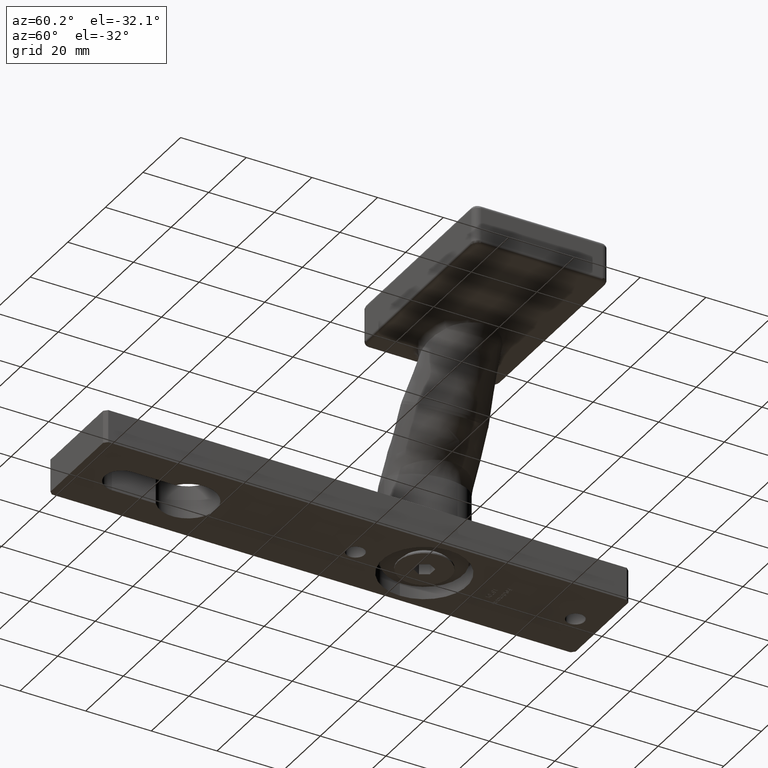
[diagram: clean part render]
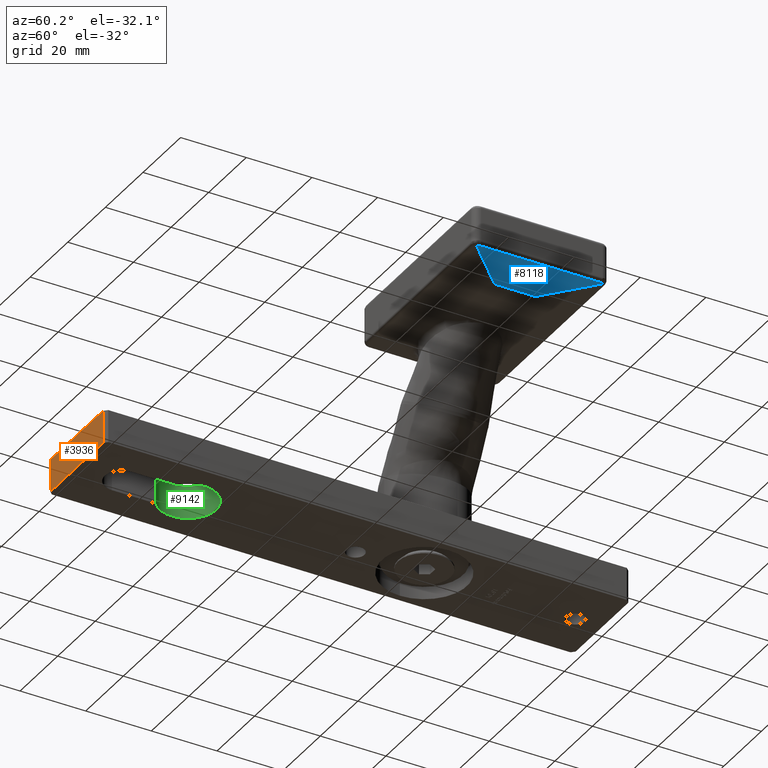
[diagram: same view with three faces highlighted in distinct colors, each labeled with its STEP entity id]
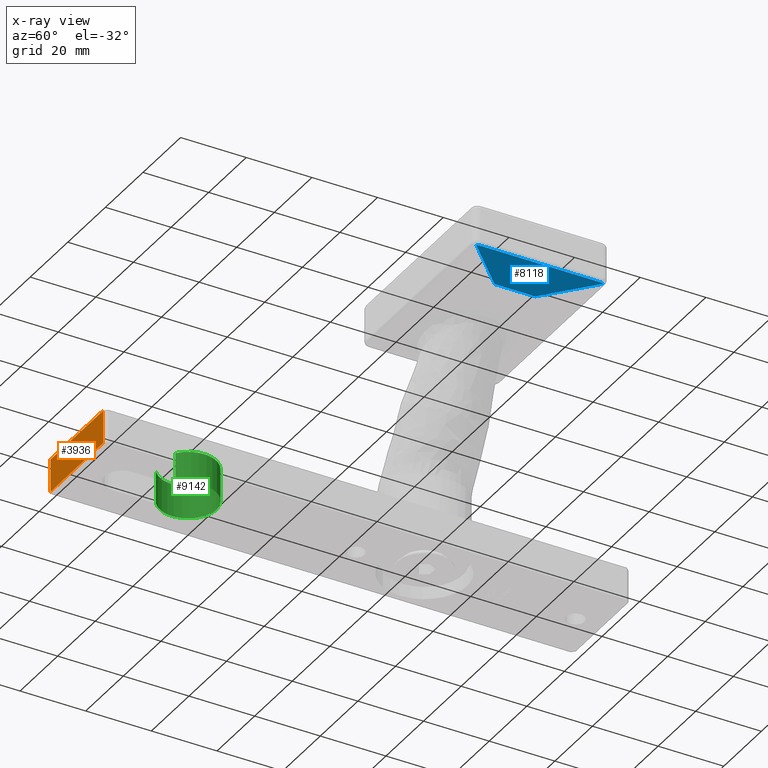
[diagram: x-ray of the same camera — body ghosted, the three highlighted faces saturated]
A machine part, auxiliary view with three faces highlighted in distinct colors.
The next image is the same camera in x-ray (body ghosted, the three faces saturated) — at least one of them is partly hidden behind the body in this view.
Their STEP definitions:

[orange] entity #3936 — the highlighted planar face has unit normal (0, 1, 0).
#65 = CARTESIAN_POINT ( 'NONE',  ( -14.99999999999999289, -80.00000000000001421, 5.000000000000000000 ) ) ;
#490 = CARTESIAN_POINT ( 'NONE',  ( -13.99999999999999112, -80.00000000000001421, 5.000000000000000000 ) ) ;
#1397 = DIRECTION ( 'NONE',  ( 0.000000000000000000, -0.000000000000000000, 1.000000000000000000 ) ) ;
#1435 = VECTOR ( 'NONE', #6655, 1000.000000000000000 ) ;
#1994 = LINE ( 'NONE', #490, #6827 ) ;
#2213 = CARTESIAN_POINT ( 'NONE',  ( 13.99999999999999822, -80.00000000000001421, 5.000000000000000000 ) ) ;
#2501 = CARTESIAN_POINT ( 'NONE',  ( 13.99999999999999822, -80.00000000000001421, -5.000000000000000000 ) ) ;
#2670 = VECTOR ( 'NONE', #6442, 1000.000000000000000 ) ;
#3020 = LINE ( 'NONE', #65, #2670 ) ;
#3789 = EDGE_CURVE ( 'NONE', #7319, #4024, #4114, .T. ) ;
#3936 = ADVANCED_FACE ( 'NONE', ( #9714 ), #6711, .F. ) ;
#4024 = VERTEX_POINT ( 'NONE', #2501 ) ;
#4114 = LINE ( 'NONE', #12772, #1435 ) ;
#4697 = DIRECTION ( 'NONE',  ( 0.000000000000000000, 0.000000000000000000, -1.000000000000000000 ) ) ;
#5010 = ORIENTED_EDGE ( 'NONE', *, *, #9276, .T. ) ;
#6442 = DIRECTION ( 'NONE',  ( 1.000000000000000000, 0.000000000000000000, 0.000000000000000000 ) ) ;
#6458 = LINE ( 'NONE', #13302, #11217 ) ;
#6510 = VERTEX_POINT ( 'NONE', #2213 ) ;
#6655 = DIRECTION ( 'NONE',  ( 1.000000000000000000, 0.000000000000000000, 0.000000000000000000 ) ) ;
#6711 = PLANE ( 'NONE',  #10949 ) ;
#6827 = VECTOR ( 'NONE', #4697, 1000.000000000000000 ) ;
#6837 = CARTESIAN_POINT ( 'NONE',  ( -13.99999999999999112, -80.00000000000001421, 5.000000000000000000 ) ) ;
#6845 = DIRECTION ( 'NONE',  ( 0.000000000000000000, 1.000000000000000000, 0.000000000000000000 ) ) ;
#6987 = EDGE_CURVE ( 'NONE', #12114, #6510, #3020, .T. ) ;
#7319 = VERTEX_POINT ( 'NONE', #9630 ) ;
#7536 = ORIENTED_EDGE ( 'NONE', *, *, #6987, .F. ) ;
#7907 = CARTESIAN_POINT ( 'NONE',  ( -14.99999999999999289, -80.00000000000001421, 5.000000000000000000 ) ) ;
#8818 = ORIENTED_EDGE ( 'NONE', *, *, #3789, .T. ) ;
#9276 = EDGE_CURVE ( 'NONE', #12114, #7319, #1994, .T. ) ;
#9630 = CARTESIAN_POINT ( 'NONE',  ( -13.99999999999999112, -80.00000000000001421, -5.000000000000000000 ) ) ;
#9714 = FACE_OUTER_BOUND ( 'NONE', #12067, .T. ) ;
#10949 = AXIS2_PLACEMENT_3D ( 'NONE', #7907, #6845, #1397 ) ;
#11062 = DIRECTION ( 'NONE',  ( 0.000000000000000000, 0.000000000000000000, 1.000000000000000000 ) ) ;
#11185 = EDGE_CURVE ( 'NONE', #4024, #6510, #6458, .T. ) ;
#11217 = VECTOR ( 'NONE', #11062, 1000.000000000000000 ) ;
#11729 = ORIENTED_EDGE ( 'NONE', *, *, #11185, .T. ) ;
#12067 = EDGE_LOOP ( 'NONE', ( #7536, #5010, #8818, #11729 ) ) ;
#12114 = VERTEX_POINT ( 'NONE', #6837 ) ;
#12772 = CARTESIAN_POINT ( 'NONE',  ( -14.99999999999999289, -80.00000000000001421, -5.000000000000000000 ) ) ;
#13302 = CARTESIAN_POINT ( 'NONE',  ( 14.00000000000000533, -80.00000000000001421, 5.000000000000000000 ) ) ;

[blue] entity #8118 — the highlighted planar face has unit normal (0.0698, 0, -0.9976).
#401 = AXIS2_PLACEMENT_3D ( 'NONE', #9187, #10225, #13468 ) ;
#927 = CARTESIAN_POINT ( 'NONE',  ( 61.45356284916648804, 19.04868100788873164, 52.92682598614297973 ) ) ;
#1545 = EDGE_CURVE ( 'NONE', #1974, #4490, #13480, .T. ) ;
#1939 = LINE ( 'NONE', #7854, #12863 ) ;
#1974 = VERTEX_POINT ( 'NONE', #9457 ) ;
#1985 = DIRECTION ( 'NONE',  ( 0.7062439675293092911, 0.7062439675293092911, 0.04938538910365998513 ) ) ;
#2154 = ORIENTED_EDGE ( 'NONE', *, *, #4383, .T. ) ;
#2158 = EDGE_CURVE ( 'NONE', #3472, #4911, #1939, .T. ) ;
#2186 =( BOUNDED_CURVE ( )  B_SPLINE_CURVE ( 3, ( #11534, #5378, #8549, #3194 ),
 .UNSPECIFIED., .F., .T. ) 
 B_SPLINE_CURVE_WITH_KNOTS ( ( 4, 4 ),
 ( 3.141592653589793116, 3.976336115791342163 ),
 .UNSPECIFIED. ) 
 CURVE ( )  GEOMETRIC_REPRESENTATION_ITEM ( )  RATIONAL_B_SPLINE_CURVE ( ( 1.000000000000000000, 0.9427716596537834004, 0.9427716596537834004, 1.000000000000000000 ) ) 
 REPRESENTATION_ITEM ( '' )  );
#2318 = EDGE_CURVE ( 'NONE', #8949, #4911, #2186, .T. ) ;
#2352 = CARTESIAN_POINT ( 'NONE',  ( 48.19933374328787323, -6.199333743287863463, 52.00000000000000711 ) ) ;
#2674 = VECTOR ( 'NONE', #6942, 1000.000000000000000 ) ;
#2987 = CARTESIAN_POINT ( 'NONE',  ( 61.56975647374414251, 18.78664360738550343, 52.93495103587784456 ) ) ;
#3194 = CARTESIAN_POINT ( 'NONE',  ( 61.24112430489135761, -19.24112430489134695, 52.91197083600788886 ) ) ;
#3242 = DIRECTION ( 'NONE',  ( -0.000000000000000000, -1.000000000000000000, -0.000000000000000000 ) ) ;
#3333 = ORIENTED_EDGE ( 'NONE', *, *, #7702, .T. ) ;
#3472 = VERTEX_POINT ( 'NONE', #2352 ) ;
#4383 = EDGE_CURVE ( 'NONE', #13720, #1974, #10106, .T. ) ;
#4490 = VERTEX_POINT ( 'NONE', #5569 ) ;
#4668 = LINE ( 'NONE', #9454, #10757 ) ;
#4911 = VERTEX_POINT ( 'NONE', #5357 ) ;
#5357 = CARTESIAN_POINT ( 'NONE',  ( 61.24112430489135761, -19.24112430489134695, 52.91197083600788886 ) ) ;
#5378 = CARTESIAN_POINT ( 'NONE',  ( 61.56975647374412830, -18.78664360738550698, 52.93495103587783746 ) ) ;
#5569 = CARTESIAN_POINT ( 'NONE',  ( 61.56975647374413541, 18.50000000000000355, 52.93495103587784456 ) ) ;
#5757 = CARTESIAN_POINT ( 'NONE',  ( 48.19933374328787323, 6.199333743287863463, 52.00000000000000711 ) ) ;
#6068 = CARTESIAN_POINT ( 'NONE',  ( 61.56975647374413541, 20.50000000000000355, 52.93495103587784456 ) ) ;
#6187 = FACE_OUTER_BOUND ( 'NONE', #9280, .T. ) ;
#6942 = DIRECTION ( 'NONE',  ( 0.000000000000000000, -1.000000000000000000, 0.000000000000000000 ) ) ;
#7158 = CARTESIAN_POINT ( 'NONE',  ( 61.24112430489135761, 19.24112430489134695, 52.91197083600788886 ) ) ;
#7176 = LINE ( 'NONE', #6068, #2674 ) ;
#7203 = CARTESIAN_POINT ( 'NONE',  ( 61.56975647374413541, -18.50000000000000711, 52.93495103587784456 ) ) ;
#7702 = EDGE_CURVE ( 'NONE', #4490, #8949, #7176, .T. ) ;
#7854 = CARTESIAN_POINT ( 'NONE',  ( 62.50000000000001421, -20.50000000000000000, 53.00000000000000711 ) ) ;
#8118 = ADVANCED_FACE ( 'NONE', ( #6187 ), #11175, .T. ) ;
#8364 = CARTESIAN_POINT ( 'NONE',  ( 61.56975647374413541, 18.50000000000000355, 52.93495103587784456 ) ) ;
#8549 = CARTESIAN_POINT ( 'NONE',  ( 61.45356284916648093, -19.04868100788872809, 52.92682598614295841 ) ) ;
#8949 = VERTEX_POINT ( 'NONE', #7203 ) ;
#9046 = EDGE_CURVE ( 'NONE', #13720, #3472, #4668, .T. ) ;
#9187 = CARTESIAN_POINT ( 'NONE',  ( 62.50000000000001421, 20.50000000000000355, 53.00000000000000711 ) ) ;
#9280 = EDGE_LOOP ( 'NONE', ( #2154, #11198, #3333, #13074, #11209, #10871 ) ) ;
#9454 = CARTESIAN_POINT ( 'NONE',  ( 48.19933374328787323, 20.50000000000000355, 52.00000000000000711 ) ) ;
#9457 = CARTESIAN_POINT ( 'NONE',  ( 61.24112430489135761, 19.24112430489134695, 52.91197083600788886 ) ) ;
#10106 = LINE ( 'NONE', #10411, #13082 ) ;
#10225 = DIRECTION ( 'NONE',  ( 0.06975647374412434487, 0.000000000000000000, -0.9975640502598244197 ) ) ;
#10411 = CARTESIAN_POINT ( 'NONE',  ( 62.50000000000001421, 20.50000000000000355, 53.00000000000000711 ) ) ;
#10757 = VECTOR ( 'NONE', #3242, 1000.000000000000000 ) ;
#10871 = ORIENTED_EDGE ( 'NONE', *, *, #9046, .F. ) ;
#11175 = PLANE ( 'NONE',  #401 ) ;
#11198 = ORIENTED_EDGE ( 'NONE', *, *, #1545, .T. ) ;
#11209 = ORIENTED_EDGE ( 'NONE', *, *, #2158, .F. ) ;
#11534 = CARTESIAN_POINT ( 'NONE',  ( 61.56975647374413541, -18.50000000000000711, 52.93495103587784456 ) ) ;
#12863 = VECTOR ( 'NONE', #13228, 1000.000000000000114 ) ;
#13074 = ORIENTED_EDGE ( 'NONE', *, *, #2318, .T. ) ;
#13082 = VECTOR ( 'NONE', #1985, 1000.000000000000114 ) ;
#13228 = DIRECTION ( 'NONE',  ( 0.7062439675293092911, -0.7062439675293092911, 0.04938538910365998513 ) ) ;
#13468 = DIRECTION ( 'NONE',  ( -0.9975640502598244197, 0.000000000000000000, -0.06975647374412434487 ) ) ;
#13480 =( BOUNDED_CURVE ( )  B_SPLINE_CURVE ( 3, ( #7158, #927, #2987, #8364 ),
 .UNSPECIFIED., .F., .F. ) 
 B_SPLINE_CURVE_WITH_KNOTS ( ( 4, 4 ),
 ( 5.448441844978034965, 6.283185307179586232 ),
 .UNSPECIFIED. ) 
 CURVE ( )  GEOMETRIC_REPRESENTATION_ITEM ( )  RATIONAL_B_SPLINE_CURVE ( ( 1.000000000000000000, 0.9427716596537831784, 0.9427716596537831784, 1.000000000000000000 ) ) 
 REPRESENTATION_ITEM ( '' )  );
#13720 = VERTEX_POINT ( 'NONE', #5757 ) ;

[green] entity #9142 — the highlighted cylindrical surface (edge-blend (fillet) strip) has radius 8.6 mm, axis along (-0, -0, -1).
#450 = EDGE_CURVE ( 'NONE', #6436, #1450, #4467, .T. ) ;
#511 = ORIENTED_EDGE ( 'NONE', *, *, #8410, .T. ) ;
#739 = CARTESIAN_POINT ( 'NONE',  ( 0.000000000000000000, -46.10000000000001563, -5.000000000000000000 ) ) ;
#943 = DIRECTION ( 'NONE',  ( 0.000000000000000000, 0.000000000000000000, 1.000000000000000000 ) ) ;
#1104 = VECTOR ( 'NONE', #12022, 1000.000000000000000 ) ;
#1450 = VERTEX_POINT ( 'NONE', #5362 ) ;
#1724 = EDGE_CURVE ( 'NONE', #9655, #10477, #8102, .T. ) ;
#2480 = DIRECTION ( 'NONE',  ( -0.000000000000000000, -0.000000000000000000, -1.000000000000000000 ) ) ;
#2502 = CARTESIAN_POINT ( 'NONE',  ( 5.249999999999995559, -52.91157103758011004, 5.000000000000000000 ) ) ;
#2853 = VECTOR ( 'NONE', #2480, 1000.000000000000000 ) ;
#3570 = AXIS2_PLACEMENT_3D ( 'NONE', #739, #12356, #6064 ) ;
#4467 = CIRCLE ( 'NONE', #12232, 8.599999999999997868 ) ;
#4958 = LINE ( 'NONE', #2502, #1104 ) ;
#5135 = ORIENTED_EDGE ( 'NONE', *, *, #1724, .F. ) ;
#5193 = CARTESIAN_POINT ( 'NONE',  ( 0.000000000000000000, -46.10000000000001563, 5.000000000000000000 ) ) ;
#5362 = CARTESIAN_POINT ( 'NONE',  ( -5.250000000000000000, -52.91157103758011004, 5.000000000000000000 ) ) ;
#5479 = DIRECTION ( 'NONE',  ( -0.000000000000000000, -0.000000000000000000, -1.000000000000000000 ) ) ;
#6064 = DIRECTION ( 'NONE',  ( 1.000000000000000000, 0.000000000000000000, 0.000000000000000000 ) ) ;
#6436 = VERTEX_POINT ( 'NONE', #10999 ) ;
#6549 = DIRECTION ( 'NONE',  ( -1.000000000000000000, 0.000000000000000000, 0.000000000000000000 ) ) ;
#7101 = CARTESIAN_POINT ( 'NONE',  ( -5.250000000000000000, -52.91157103758011004, -5.000000000000000000 ) ) ;
#7336 = LINE ( 'NONE', #8844, #2853 ) ;
#8017 = ORIENTED_EDGE ( 'NONE', *, *, #450, .T. ) ;
#8102 = CIRCLE ( 'NONE', #3570, 8.599999999999997868 ) ;
#8410 = EDGE_CURVE ( 'NONE', #1450, #10477, #7336, .T. ) ;
#8844 = CARTESIAN_POINT ( 'NONE',  ( -5.250000000000000000, -52.91157103758011004, 5.000000000000000000 ) ) ;
#9142 = ADVANCED_FACE ( 'NONE', ( #9459 ), #12739, .F. ) ;
#9459 = FACE_OUTER_BOUND ( 'NONE', #13703, .T. ) ;
#9655 = VERTEX_POINT ( 'NONE', #11760 ) ;
#10171 = AXIS2_PLACEMENT_3D ( 'NONE', #12941, #5479, #6549 ) ;
#10477 = VERTEX_POINT ( 'NONE', #7101 ) ;
#10999 = CARTESIAN_POINT ( 'NONE',  ( 5.249999999999995559, -52.91157103758011004, 5.000000000000000000 ) ) ;
#11760 = CARTESIAN_POINT ( 'NONE',  ( 5.249999999999995559, -52.91157103758011004, -5.000000000000000000 ) ) ;
#11813 = EDGE_CURVE ( 'NONE', #6436, #9655, #4958, .T. ) ;
#12022 = DIRECTION ( 'NONE',  ( -0.000000000000000000, -0.000000000000000000, -1.000000000000000000 ) ) ;
#12232 = AXIS2_PLACEMENT_3D ( 'NONE', #5193, #943, #12607 ) ;
#12356 = DIRECTION ( 'NONE',  ( 0.000000000000000000, 0.000000000000000000, 1.000000000000000000 ) ) ;
#12607 = DIRECTION ( 'NONE',  ( 1.000000000000000000, 0.000000000000000000, 0.000000000000000000 ) ) ;
#12739 = CYLINDRICAL_SURFACE ( 'NONE', #10171, 8.599999999999997868 ) ;
#12941 = CARTESIAN_POINT ( 'NONE',  ( 0.000000000000000000, -46.10000000000001563, 5.000000000000000000 ) ) ;
#13195 = ORIENTED_EDGE ( 'NONE', *, *, #11813, .F. ) ;
#13703 = EDGE_LOOP ( 'NONE', ( #5135, #13195, #8017, #511 ) ) ;